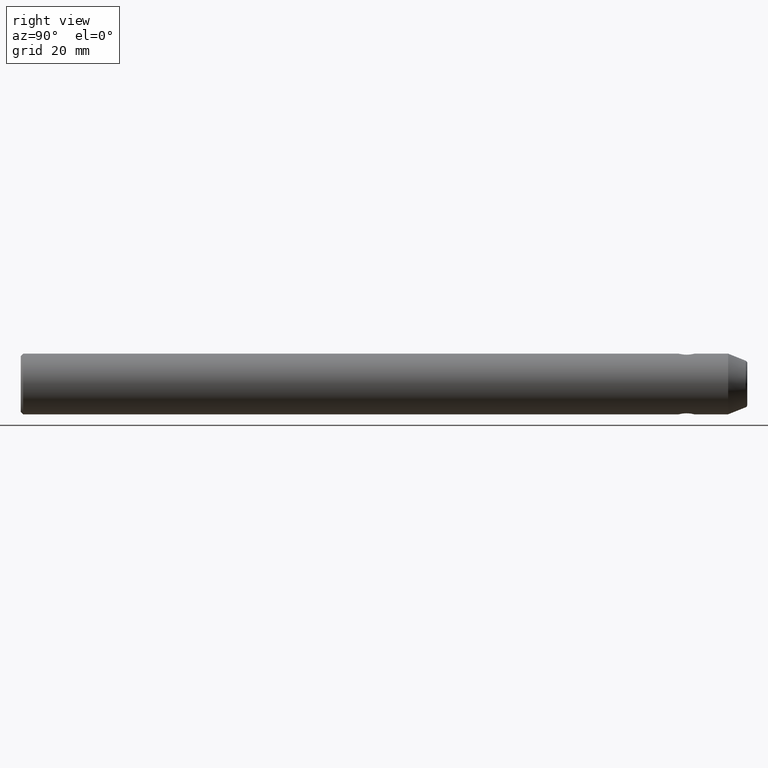
[diagram: clean part render]
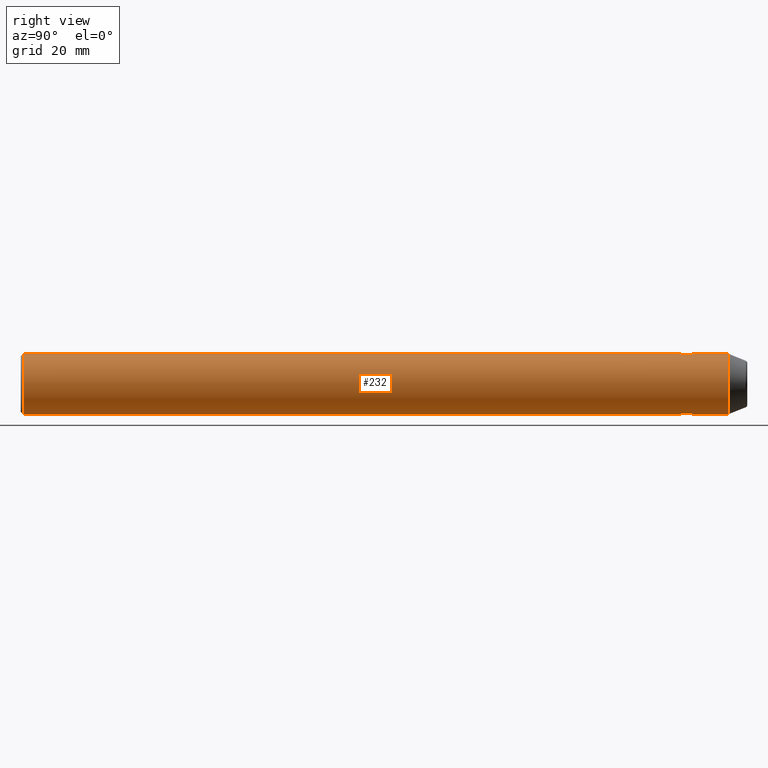
[diagram: same view with one face highlighted and labeled with its STEP entity id]
A machine part, right view. The second image highlights one B-rep face of the part: STEP entity #232.
In plain terms, the highlighted cylindrical surface (edge-blend (fillet) strip) has radius 6.35 mm, axis along (-0, -1, -0).
Its self-contained STEP definition (entity closure, byte-faithful):
#1 = DIRECTION ( 'NONE',  ( -0.0000000000000000000, -1.000000000000000000, -0.0000000000000000000 ) ) ;
#3 = CARTESIAN_POINT ( 'NONE',  ( 1.650000000000003200, 139.4087910117356200, -6.131883886702357100 ) ) ;
#4 = DIRECTION ( 'NONE',  ( 0.0000000000000000000, 0.0000000000000000000, -1.000000000000000000 ) ) ;
#10 = CARTESIAN_POINT ( 'NONE',  ( 1.639344959258787400, 139.5161681699940200, -6.134779892737518600 ) ) ;
#25 = CARTESIAN_POINT ( 'NONE',  ( 1.650000000000003900, 139.3000000000000100, -6.131883886702356200 ) ) ;
#28 = CARTESIAN_POINT ( 'NONE',  ( 0.8311828309225174300, 137.8585364440803900, 6.298525340911069700 ) ) ;
#37 = CARTESIAN_POINT ( 'NONE',  ( 7.776507174585692200E-016, 152.0000000000000000, 6.349999999999999600 ) ) ;
#46 = ORIENTED_EDGE ( 'NONE', *, *, #788, .T. ) ;
#47 = CARTESIAN_POINT ( 'NONE',  ( 7.776507174597243100E-016, 0.4999999999999726900, -6.350000000009431200 ) ) ;
#55 = CARTESIAN_POINT ( 'NONE',  ( 1.639209318810495900, 139.5173356914322400, 6.134816686754134300 ) ) ;
#58 = EDGE_CURVE ( 'NONE', #477, #762, #92, .T. ) ;
#68 = CARTESIAN_POINT ( 'NONE',  ( 0.8329576689541471300, 140.7404759789549800, -6.298295562567704000 ) ) ;
#69 = VERTEX_POINT ( 'NONE', #773 ) ;
#74 = CARTESIAN_POINT ( 'NONE',  ( 1.318491683776829500, 140.3148354435902500, -6.213514843919348600 ) ) ;
#91 = LINE ( 'NONE', #124, #613 ) ;
#92 = CIRCLE ( 'NONE', #783, 6.349999999999999600 ) ;
#106 = CARTESIAN_POINT ( 'NONE',  ( 0.5334774331399363400, 140.8650883997475200, 6.328340545610156900 ) ) ;
#111 = LINE ( 'NONE', #566, #795 ) ;
#115 = AXIS2_PLACEMENT_3D ( 'NONE', #385, #770, #392 ) ;
#124 = CARTESIAN_POINT ( 'NONE',  ( 0.0000000000000000000, 152.0000000000000000, -6.349999999999999600 ) ) ;
#133 = CARTESIAN_POINT ( 'NONE',  ( 0.0000000000000000000, 140.9500000000000200, -6.349999999999999600 ) ) ;
#142 = ORIENTED_EDGE ( 'NONE', *, *, #322, .T. ) ;
#145 = CARTESIAN_POINT ( 'NONE',  ( 2.477007465175872600E-021, 137.6500000000000100, -6.349999999999999600 ) ) ;
#151 = CARTESIAN_POINT ( 'NONE',  ( 0.2159147241639700600, 137.6500000000000300, -6.350000000000001400 ) ) ;
#165 = CARTESIAN_POINT ( 'NONE',  ( 7.776507174587908900E-016, 147.9999999999999100, 6.350000000001809800 ) ) ;
#170 = ORIENTED_EDGE ( 'NONE', *, *, #58, .T. ) ;
#182 = DIRECTION ( 'NONE',  ( -0.0000000000000000000, -1.000000000000000000, -0.0000000000000000000 ) ) ;
#183 = ORIENTED_EDGE ( 'NONE', *, *, #592, .T. ) ;
#187 = CARTESIAN_POINT ( 'NONE',  ( 0.0000000000000000000, 147.9999999999999100, 0.0000000000000000000 ) ) ;
#190 = CARTESIAN_POINT ( 'NONE',  ( 0.4298634471662813300, 140.8967031799936600, -6.336326912732535500 ) ) ;
#195 = CARTESIAN_POINT ( 'NONE',  ( 0.0000000000000000000, 0.4999999999999726900, 6.350000000009431200 ) ) ;
#206 = ORIENTED_EDGE ( 'NONE', *, *, #799, .T. ) ;
#212 = CARTESIAN_POINT ( 'NONE',  ( -6.974444811417583500E-013, 137.6499999999935300, 6.350000000001686300 ) ) ;
#223 = DIRECTION ( 'NONE',  ( -0.0000000000000000000, -1.000000000000000000, -0.0000000000000000000 ) ) ;
#232 = ADVANCED_FACE ( 'NONE', ( #651 ), #301, .T. ) ;
#234 = VERTEX_POINT ( 'NONE', #456 ) ;
#240 = CARTESIAN_POINT ( 'NONE',  ( 1.564557525369210300, 139.8350021183788400, 6.154386527759380800 ) ) ;
#243 = ORIENTED_EDGE ( 'NONE', *, *, #534, .T. ) ;
#247 = B_SPLINE_CURVE_WITH_KNOTS ( 'NONE', 3,
 ( #318, #3, #10, #627, #754, #511, #74, #324, #68, #257, #190, #445, #508, #133 ),
 .UNSPECIFIED., .F., .F.,
 ( 4, 2, 2, 2, 2, 2, 4 ),
 ( 0.007771194966038250600, 0.008094862658375981700, 0.008418530350713712000, 0.009065865735389172500, 0.009713201120064633000, 0.01003686881240236300, 0.01036053650474009400 ),
 .UNSPECIFIED. ) ;
#254 = CARTESIAN_POINT ( 'NONE',  ( 1.596964358350171800, 138.8712311694286000, 6.145948398194503800 ) ) ;
#255 = B_SPLINE_CURVE_WITH_KNOTS ( 'NONE', 3,
 ( #722, #781, #786, #471, #106, #291, #351, #791, #415, #240, #610, #55, #614, #490 ),
 .UNSPECIFIED., .F., .F.,
 ( 4, 2, 2, 2, 2, 2, 4 ),
 ( 0.007771094307911123800, 0.008094760523536432400, 0.008418426739161741900, 0.009065759170412329700, 0.009713091601662917500, 0.01003675781728824800, 0.01036042403291358000 ),
 .UNSPECIFIED. ) ;
#257 = CARTESIAN_POINT ( 'NONE',  ( 0.5350354595222439600, 140.8645476784386400, -6.328206572559572900 ) ) ;
#263 = CARTESIAN_POINT ( 'NONE',  ( 1.639197571083346000, 139.0828152978113500, 6.134819328885311200 ) ) ;
#288 = LINE ( 'NONE', #37, #734 ) ;
#289 = DIRECTION ( 'NONE',  ( -0.0000000000000000000, -1.000000000000000000, -0.0000000000000000000 ) ) ;
#291 = CARTESIAN_POINT ( 'NONE',  ( 0.8318674767962757100, 140.7411439844179000, 6.298449446695655300 ) ) ;
#301 = CYLINDRICAL_SURFACE ( 'NONE', #115, 6.349999999999999600 ) ;
#303 = B_SPLINE_CURVE_WITH_KNOTS ( 'NONE', 3,
 ( #565, #624, #263, #254, #315, #764, #640, #590, #454, #712, #28, #777, #647, #212 ),
 .UNSPECIFIED., .F., .F.,
 ( 4, 2, 2, 2, 2, 2, 4 ),
 ( 0.0000000000000000000, 0.0003238926831712337200, 0.0006477853663424674400, 0.0009716780495137012100, 0.001295570732684934900, 0.001943356099027343900, 0.002591141465369753900 ),
 .UNSPECIFIED. ) ;
#309 = EDGE_CURVE ( 'NONE', #622, #762, #111, .T. ) ;
#312 = LINE ( 'NONE', #404, #433 ) ;
#315 = CARTESIAN_POINT ( 'NONE',  ( 1.564989453269663100, 138.7661513992726700, 6.154277929602760500 ) ) ;
#318 = CARTESIAN_POINT ( 'NONE',  ( 1.650000000000003900, 139.3000000000000100, -6.131883886702356200 ) ) ;
#322 = EDGE_CURVE ( 'NONE', #407, #736, #643, .T. ) ;
#324 = CARTESIAN_POINT ( 'NONE',  ( 1.015924515481553000, 140.6176527147162900, -6.270094450216704200 ) ) ;
#332 = DIRECTION ( 'NONE',  ( 0.0000000000000000000, 0.0000000000000000000, -1.000000000000000000 ) ) ;
#334 = DIRECTION ( 'NONE',  ( 0.0000000000000000000, 1.000000000000000000, 0.0000000000000000000 ) ) ;
#335 = AXIS2_PLACEMENT_3D ( 'NONE', #187, #368, #4 ) ;
#337 = CARTESIAN_POINT ( 'NONE',  ( 1.242568029519244300, 138.2090815691347200, -6.227721791874659900 ) ) ;
#339 = CARTESIAN_POINT ( 'NONE',  ( 1.311810005104612000, 138.2934501068672300, -6.213322798061661000 ) ) ;
#344 = ORIENTED_EDGE ( 'NONE', *, *, #309, .F. ) ;
#351 = CARTESIAN_POINT ( 'NONE',  ( 1.014955855173015600, 140.6183996844921200, 6.270254070800326000 ) ) ;
#356 = EDGE_CURVE ( 'NONE', #407, #234, #91, .T. ) ;
#368 = DIRECTION ( 'NONE',  ( -0.0000000000000000000, -1.000000000000000000, -0.0000000000000000000 ) ) ;
#385 = CARTESIAN_POINT ( 'NONE',  ( 0.0000000000000000000, 152.0000000000000000, 0.0000000000000000000 ) ) ;
#391 = CARTESIAN_POINT ( 'NONE',  ( 1.650000000000003200, 139.0823437094971400, -6.131883886702357100 ) ) ;
#392 = DIRECTION ( 'NONE',  ( 0.0000000000000000000, 0.0000000000000000000, -1.000000000000000000 ) ) ;
#401 = CARTESIAN_POINT ( 'NONE',  ( 0.8286492026783702800, 137.8691125919200400, -6.296349623097796700 ) ) ;
#404 = CARTESIAN_POINT ( 'NONE',  ( 7.776507174585692200E-016, 152.0000000000000000, 6.349999999999999600 ) ) ;
#407 = VERTEX_POINT ( 'NONE', #679 ) ;
#415 = CARTESIAN_POINT ( 'NONE',  ( 1.440522225424556400, 140.1328660069273400, 6.185034426022238700 ) ) ;
#433 = VECTOR ( 'NONE', #289, 1000.000000000000000 ) ;
#438 = CARTESIAN_POINT ( 'NONE',  ( 7.294888503011075700E-016, 140.9500000000000200, 6.350000000000000500 ) ) ;
#445 = CARTESIAN_POINT ( 'NONE',  ( 0.2173364897669750900, 140.9392097115462000, -6.347171510085738400 ) ) ;
#454 = CARTESIAN_POINT ( 'NONE',  ( 1.242031019180607900, 138.2085142941960800, 6.227825099195501800 ) ) ;
#456 = CARTESIAN_POINT ( 'NONE',  ( 0.0000000000000000000, 140.9500000000000200, -6.349999999999999600 ) ) ;
#458 = CARTESIAN_POINT ( 'NONE',  ( 0.4339266647823890600, 137.6935949933664500, -6.338305832614891800 ) ) ;
#464 = ORIENTED_EDGE ( 'NONE', *, *, #356, .F. ) ;
#471 = CARTESIAN_POINT ( 'NONE',  ( 0.4281799385762382100, 140.8971364700292400, 6.336436576887964900 ) ) ;
#477 = VERTEX_POINT ( 'NONE', #195 ) ;
#484 = VERTEX_POINT ( 'NONE', #438 ) ;
#490 = CARTESIAN_POINT ( 'NONE',  ( 1.650000000000002800, 139.3000000000000100, 6.131883886702356200 ) ) ;
#508 = CARTESIAN_POINT ( 'NONE',  ( 0.1094774065807098300, 140.9500000000000500, -6.349999999999998800 ) ) ;
#511 = CARTESIAN_POINT ( 'NONE',  ( 1.441186265408711500, 140.1317847128855500, -6.184878603438764200 ) ) ;
#522 = CARTESIAN_POINT ( 'NONE',  ( 2.477007465175872600E-021, 137.6500000000000100, -6.349999999999999600 ) ) ;
#525 = CARTESIAN_POINT ( 'NONE',  ( -6.974444811417583500E-013, 137.6499999999935300, 6.350000000001686300 ) ) ;
#529 = CARTESIAN_POINT ( 'NONE',  ( 1.481856810676660800, 138.5662214334869300, -6.174823879486199400 ) ) ;
#530 = ORIENTED_EDGE ( 'NONE', *, *, #753, .T. ) ;
#534 = EDGE_CURVE ( 'NONE', #69, #234, #247, .T. ) ;
#537 = ORIENTED_EDGE ( 'NONE', *, *, #570, .T. ) ;
#550 = VERTEX_POINT ( 'NONE', #758 ) ;
#565 = CARTESIAN_POINT ( 'NONE',  ( 1.650000000000002800, 139.3000000000000100, 6.131883886702356200 ) ) ;
#566 = CARTESIAN_POINT ( 'NONE',  ( 0.0000000000000000000, 152.0000000000000000, -6.349999999999999600 ) ) ;
#570 = EDGE_CURVE ( 'NONE', #550, #586, #303, .T. ) ;
#585 = CARTESIAN_POINT ( 'NONE',  ( 1.090360761903066000, 138.0569425839137800, -6.256165553586001200 ) ) ;
#586 = VERTEX_POINT ( 'NONE', #525 ) ;
#590 = CARTESIAN_POINT ( 'NONE',  ( 1.311419225063755100, 138.2928847989489000, 6.213408331152565200 ) ) ;
#592 = EDGE_CURVE ( 'NONE', #622, #69, #735, .T. ) ;
#610 = CARTESIAN_POINT ( 'NONE',  ( 1.596706807828292000, 139.7298480702297900, 6.146015810326793400 ) ) ;
#613 = VECTOR ( 'NONE', #182, 1000.000000000000000 ) ;
#614 = CARTESIAN_POINT ( 'NONE',  ( 1.650000000000002600, 139.4094807789921300, 6.131883886702354400 ) ) ;
#622 = VERTEX_POINT ( 'NONE', #145 ) ;
#624 = CARTESIAN_POINT ( 'NONE',  ( 1.650000000000002400, 139.1904426178835200, 6.131883886702358000 ) ) ;
#627 = CARTESIAN_POINT ( 'NONE',  ( 1.597140713863179500, 139.7281613168963200, -6.145902518581332100 ) ) ;
#640 = CARTESIAN_POINT ( 'NONE',  ( 1.431218338206687900, 138.4719206074077000, 6.186911793607840200 ) ) ;
#643 = CIRCLE ( 'NONE', #335, 6.349999999999999600 ) ;
#646 = CARTESIAN_POINT ( 'NONE',  ( 1.007614113568351800, 137.9889652659675800, -6.270198711007579600 ) ) ;
#647 = CARTESIAN_POINT ( 'NONE',  ( 0.2163660776478331400, 137.6499999999998400, 6.350000000000039600 ) ) ;
#651 = FACE_OUTER_BOUND ( 'NONE', #796, .T. ) ;
#679 = CARTESIAN_POINT ( 'NONE',  ( 0.0000000000000000000, 147.9999999999999100, -6.350000000001809800 ) ) ;
#701 = CARTESIAN_POINT ( 'NONE',  ( 0.7321095869319816900, 137.8174016384539600, -6.308446230829311200 ) ) ;
#706 = CARTESIAN_POINT ( 'NONE',  ( 0.0000000000000000000, 0.4999999999999726900, 0.0000000000000000000 ) ) ;
#712 = CARTESIAN_POINT ( 'NONE',  ( 1.014625064902110900, 137.9813020163824100, 6.270312755579055000 ) ) ;
#722 = CARTESIAN_POINT ( 'NONE',  ( 7.294888503011075700E-016, 140.9500000000000200, 6.350000000000000500 ) ) ;
#734 = VECTOR ( 'NONE', #223, 1000.000000000000000 ) ;
#735 = B_SPLINE_CURVE_WITH_KNOTS ( 'NONE', 3,
 ( #522, #151, #458, #701, #401, #646, #585, #337, #339, #779, #529, #767, #391, #25 ),
 .UNSPECIFIED., .F., .F.,
 ( 4, 2, 2, 2, 2, 2, 4 ),
 ( 0.005180969610249826900, 0.005828525949196914000, 0.006152304118670457900, 0.006476082288144001000, 0.006799860457617544100, 0.007123638627091088100, 0.007771194966038250600 ),
 .UNSPECIFIED. ) ;
#736 = VERTEX_POINT ( 'NONE', #165 ) ;
#753 = EDGE_CURVE ( 'NONE', #586, #477, #312, .T. ) ;
#754 = CARTESIAN_POINT ( 'NONE',  ( 1.565099434750591300, 139.8334413504702800, -6.154248455909358200 ) ) ;
#758 = CARTESIAN_POINT ( 'NONE',  ( 1.650000000000002800, 139.3000000000000100, 6.131883886702356200 ) ) ;
#762 = VERTEX_POINT ( 'NONE', #47 ) ;
#764 = CARTESIAN_POINT ( 'NONE',  ( 1.481957985968025900, 138.5665241345691900, 6.174797919889079400 ) ) ;
#767 = CARTESIAN_POINT ( 'NONE',  ( 1.607107112136418400, 138.8675313904899400, -6.143867261766635200 ) ) ;
#770 = DIRECTION ( 'NONE',  ( -0.0000000000000000000, -1.000000000000000000, -0.0000000000000000000 ) ) ;
#773 = CARTESIAN_POINT ( 'NONE',  ( 1.650000000000003900, 139.3000000000000100, -6.131883886702356200 ) ) ;
#777 = CARTESIAN_POINT ( 'NONE',  ( 0.4342376508791046500, 137.6937248853251100, 6.338274531059560100 ) ) ;
#779 = CARTESIAN_POINT ( 'NONE',  ( 1.431005737599822900, 138.4716216107270000, -6.186957916566246500 ) ) ;
#781 = CARTESIAN_POINT ( 'NONE',  ( 0.1087848980353968800, 140.9500000000000500, 6.350000000000000500 ) ) ;
#783 = AXIS2_PLACEMENT_3D ( 'NONE', #706, #334, #332 ) ;
#786 = CARTESIAN_POINT ( 'NONE',  ( 0.2161653051584598000, 140.9393460661319800, 6.347207190061515900 ) ) ;
#788 = EDGE_CURVE ( 'NONE', #736, #484, #288, .T. ) ;
#791 = CARTESIAN_POINT ( 'NONE',  ( 1.317750811306547000, 140.3157981666255100, 6.213674782255584000 ) ) ;
#795 = VECTOR ( 'NONE', #1, 1000.000000000000000 ) ;
#796 = EDGE_LOOP ( 'NONE', ( #142, #46, #206, #537, #530, #170, #344, #183, #243, #464 ) ) ;
#799 = EDGE_CURVE ( 'NONE', #484, #550, #255, .T. ) ;